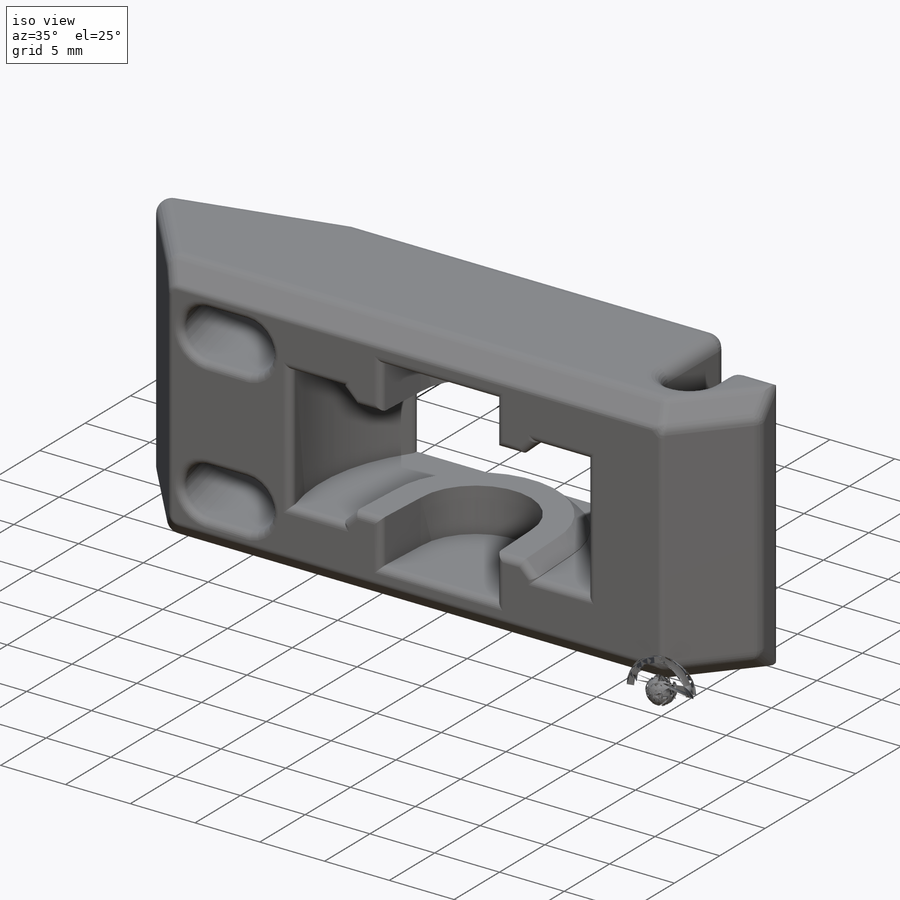
[diagram: iso view]
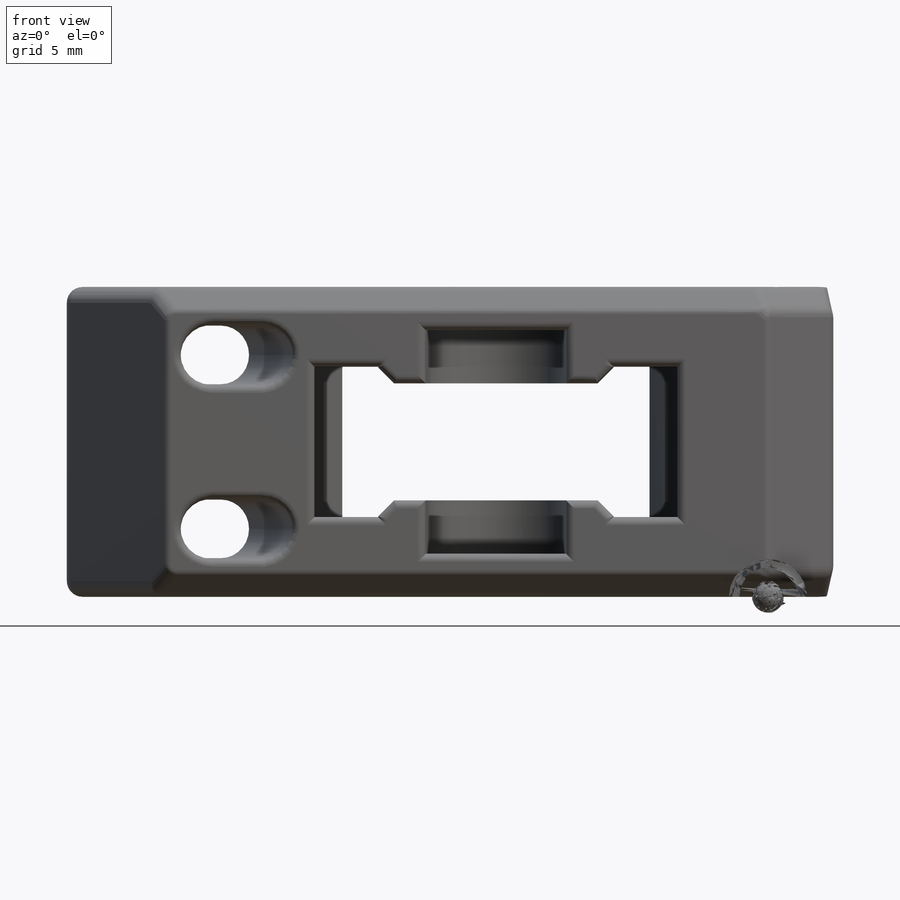
[diagram: front view]
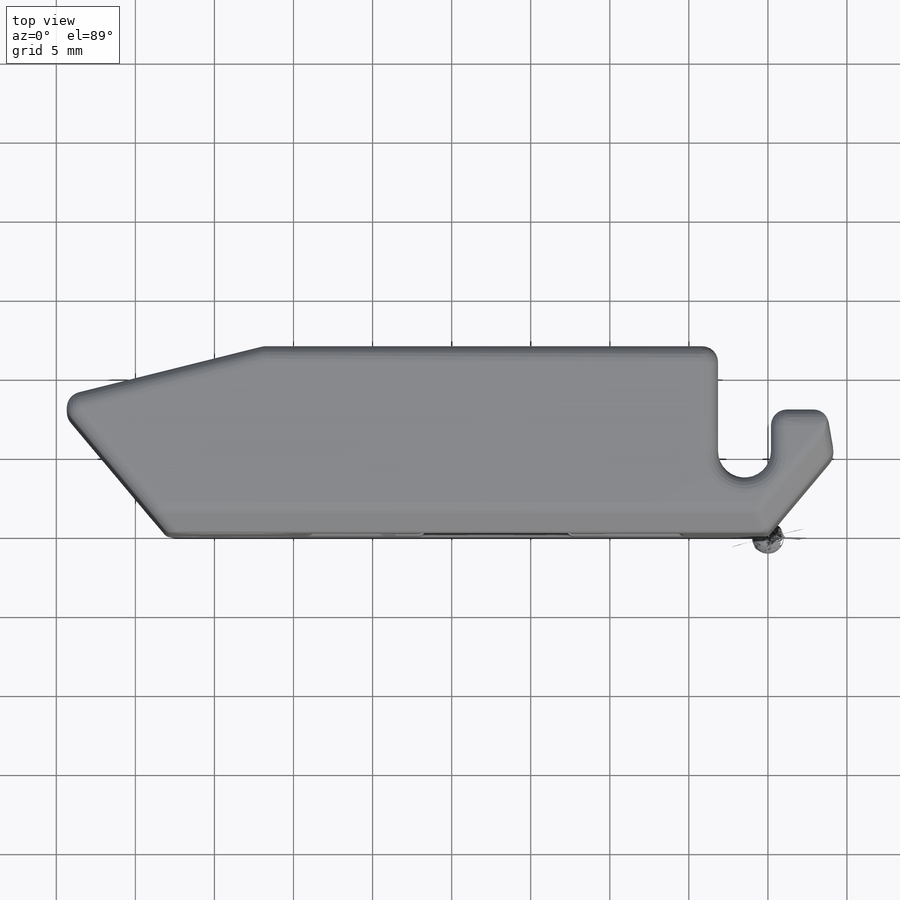
[diagram: top view]
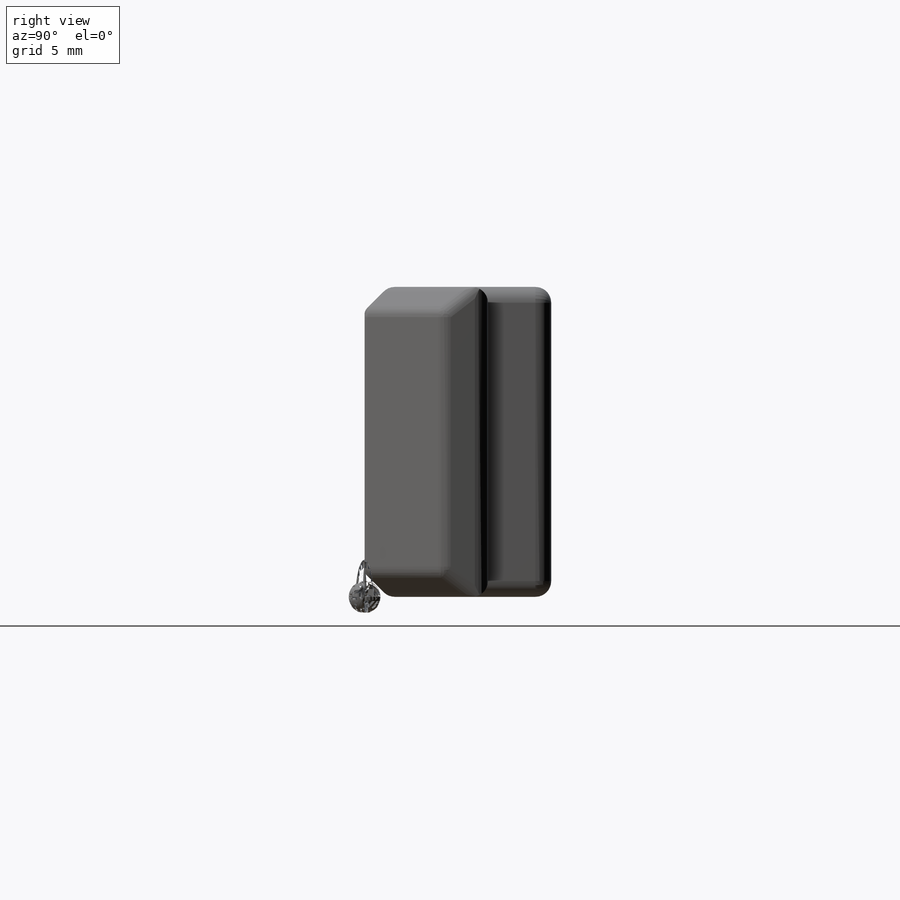
[diagram: right view]
SOLIDWORKS PART (.sldprt)
format: sldprt  version: not decoded by parser v0  size: 798,208 bytes
history: native  units: mm
features: sketch x5, cut_extrude x3, extrude x2, chamfer x2, fillet x2, material x1, plane x1, mirror x1 (+13 scaffold rows collapsed)
feature tree (30):
  scaffold x13  (default folders/planes/origin — collapsed)
  material  "ABS"
  sketch  "Sketch1"  dims[c1.D5=1.675mm c1.D1=38.0mm c1.D2=4.0mm c1.D3=7.8mm c1.D4=3.5mm c1.D6=5.0mm c1.D7=~111.60271mm c2.D7=50.0deg c2.D8=5.0mm c3.D8=130.0deg c3.D9=30.0mm c3.D10=8.5mm c3.D11=11.8mm c3.D12=8.5mm c4.D12=130.0deg c4.D2=4.0mm c4.D9=3.3mm c5.D9=166.0deg]
  extrude  "Boss-Extrude1"  Depth=19.6mm
  plane  "Plane1"
  sketch  "Sketch2"  dims[c1.D1=3.5mm c1.D2=3.7mm c1.D3=1.85mm c2.D2=2.0mm c2.D1=1.0mm c2.D3=3.0mm c2.D4=~31.445376mm c3.D1=~11.141949mm c4.D1=90.0deg c5.D1=32.5mm c5.D4=5.5mm]
  cut_extrude  "Cut-Extrude1"  Depth=13mm
  sketch  "Sketch3"  dims[D1=24.0mm D2=~17.20135mm D3=4.0mm]
  cut_extrude  "Cut-Extrude2"  Depth=4.75mm
  sketch  "Sketch4"  dims[c1.D1=8.5mm c1.D2=~4.791137mm c2.D2=87.0deg c3.D2=~3.90772mm c4.D2=87.0deg c4.D3=~4.092036mm c4.D4=~15.700443mm]
  cut_extrude  "Cut-Extrude3"  Depth=7.075mm
  sketch  "Sketch5"  dims[D1=3.0mm]
  extrude  "Boss-Extrude2"  Depth=3.7mm
  mirror  "Mirror1"
  chamfer  "Chamfer1"  Distance=1mm Angle=45deg
  chamfer  "Chamfer2"  Distance=1.5mm Angle=45deg
  fillet  "Fillet2"  Radius=0.5mm
  fillet  "Fillet3"  Radius=1mm
decode coverage: 14 of 15 modeling features carry decoded parameters
note: ~ marks probable driven/reference dimensions
note: suppression state not decoded; provenance and decode notes live in map.json
